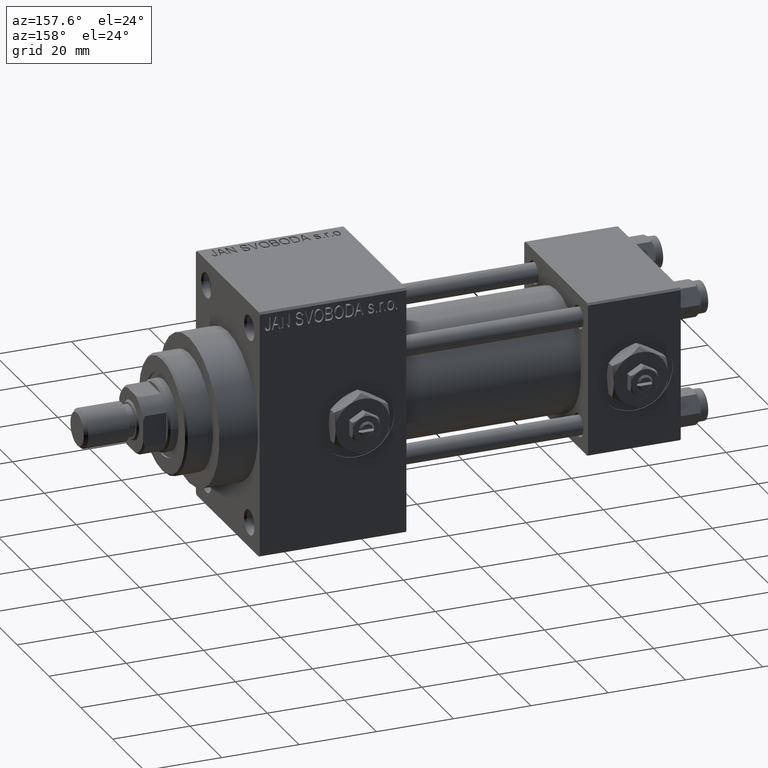
[diagram: clean part render]
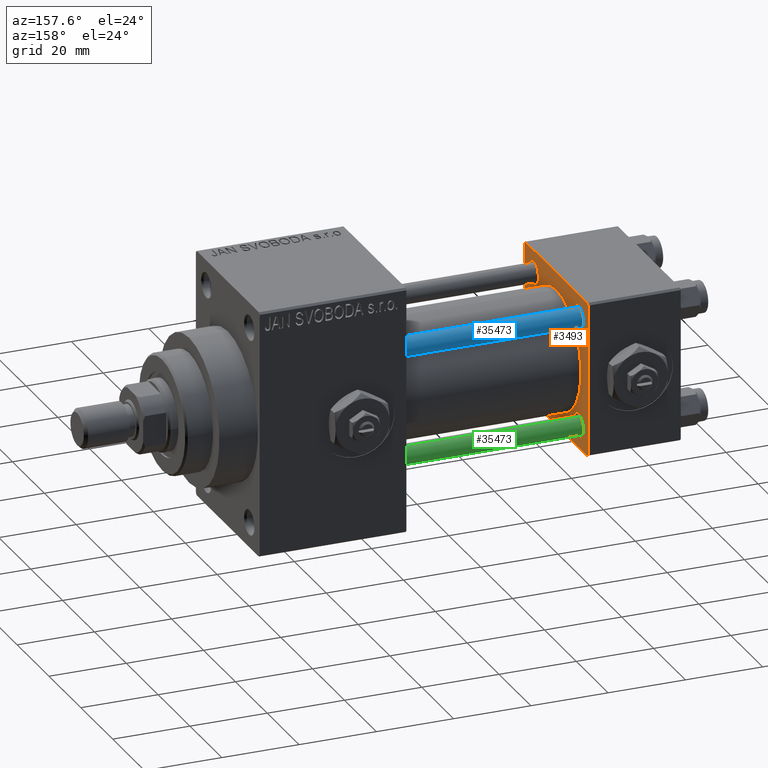
[diagram: same view with three faces highlighted in distinct colors, each labeled with its STEP entity id]
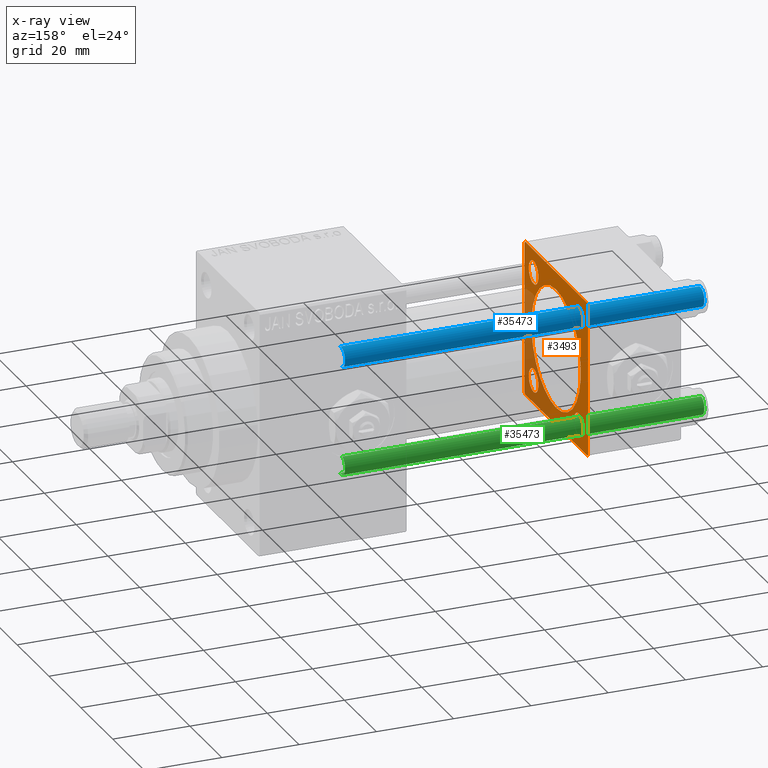
[diagram: x-ray of the same camera — body ghosted, the three highlighted faces saturated]
A machine part, auxiliary view with three faces highlighted in distinct colors.
The next image is the same camera in x-ray (body ghosted, the three faces saturated) — at least one of them is partly hidden behind the body in this view.
Their STEP definitions:

[orange] entity #3493 — the highlighted planar face has unit normal (-1, 0, 0).
#194 = LINE ( 'NONE', #11214, #33033 ) ;
#1168 = CARTESIAN_POINT ( 'NONE',  ( 24.00000000000000000, -14.14999999999999503, -11.15000000000002878 ) ) ;
#2058 = DIRECTION ( 'NONE',  ( -1.000000000000000000, -0.000000000000000000, -0.000000000000000000 ) ) ;
#2675 = CIRCLE ( 'NONE', #5827, 15.50000000000000000 ) ;
#2698 = CARTESIAN_POINT ( 'NONE',  ( 24.00000000000000000, 14.14999999999999858, 17.14999999999994884 ) ) ;
#2709 = LINE ( 'NONE', #18954, #3199 ) ;
#3138 = ORIENTED_EDGE ( 'NONE', *, *, #45624, .T. ) ;
#3199 = VECTOR ( 'NONE', #36975, 1000.000000000000114 ) ;
#3270 = FACE_BOUND ( 'NONE', #29572, .T. ) ;
#3493 = ADVANCED_FACE ( 'NONE', ( #26036, #34767, #3270, #18539, #14782, #30040 ), #26526, .F. ) ;
#4103 = EDGE_CURVE ( 'NONE', #37865, #14377, #33474, .T. ) ;
#4356 = VECTOR ( 'NONE', #19568, 1000.000000000000000 ) ;
#5347 = EDGE_CURVE ( 'NONE', #40837, #47763, #47851, .T. ) ;
#5355 = EDGE_LOOP ( 'NONE', ( #41540, #14274 ) ) ;
#5589 = VECTOR ( 'NONE', #34095, 1000.000000000000000 ) ;
#5827 = AXIS2_PLACEMENT_3D ( 'NONE', #19478, #49467, #23217 ) ;
#6228 = ORIENTED_EDGE ( 'NONE', *, *, #7912, .F. ) ;
#6404 = EDGE_CURVE ( 'NONE', #12147, #44591, #13555, .T. ) ;
#6773 = EDGE_LOOP ( 'NONE', ( #26149, #40244 ) ) ;
#6933 = LINE ( 'NONE', #7672, #20776 ) ;
#6952 = CARTESIAN_POINT ( 'NONE',  ( 24.00000000000000000, 14.14999999999999858, 11.15000000000005365 ) ) ;
#7018 = EDGE_CURVE ( 'NONE', #36329, #10434, #6933, .T. ) ;
#7356 = VERTEX_POINT ( 'NONE', #28833 ) ;
#7449 = CARTESIAN_POINT ( 'NONE',  ( 24.00000000000000000, -20.00000000000000000, -19.49999999999999645 ) ) ;
#7489 = CIRCLE ( 'NONE', #48218, 2.999999999999945377 ) ;
#7557 = CARTESIAN_POINT ( 'NONE',  ( 24.00000000000000000, -14.14999999999999503, 11.15000000000002878 ) ) ;
#7573 = CARTESIAN_POINT ( 'NONE',  ( 24.00000000000000000, -20.00000000000000355, 19.99999999999998934 ) ) ;
#7672 = CARTESIAN_POINT ( 'NONE',  ( 24.00000000000000000, 19.50000000000000000, 20.00000000000000000 ) ) ;
#7912 = EDGE_CURVE ( 'NONE', #27435, #14240, #8469, .T. ) ;
#8072 = EDGE_LOOP ( 'NONE', ( #23121, #39731 ) ) ;
#8277 = CARTESIAN_POINT ( 'NONE',  ( 24.00000000000000000, 20.00000000000000000, 20.00000000000000000 ) ) ;
#8469 = LINE ( 'NONE', #26514, #44771 ) ;
#8503 = EDGE_LOOP ( 'NONE', ( #6228, #38255, #18301, #45475, #46469, #41881, #8853, #3138 ) ) ;
#8853 = ORIENTED_EDGE ( 'NONE', *, *, #33334, .T. ) ;
#10434 = VERTEX_POINT ( 'NONE', #38775 ) ;
#10852 = DIRECTION ( 'NONE',  ( -0.000000000000000000, 0.7071067811865524577, 0.7071067811865426878 ) ) ;
#11112 = DIRECTION ( 'NONE',  ( 0.000000000000000000, 0.000000000000000000, 1.000000000000000000 ) ) ;
#11152 = CARTESIAN_POINT ( 'NONE',  ( 24.00000000000000000, 20.00000000000000000, 19.49999999999999289 ) ) ;
#11214 = CARTESIAN_POINT ( 'NONE',  ( 24.00000000000000000, 20.00000000000000000, 20.00000000000000000 ) ) ;
#11800 = CARTESIAN_POINT ( 'NONE',  ( 24.00000000000000000, -7.038826752868131828E-16, -15.50000000000000000 ) ) ;
#11896 = CARTESIAN_POINT ( 'NONE',  ( 24.00000000000000000, 20.00000000000000000, -19.50000000000002132 ) ) ;
#12147 = VERTEX_POINT ( 'NONE', #49171 ) ;
#12294 = LINE ( 'NONE', #47281, #4356 ) ;
#12897 = CARTESIAN_POINT ( 'NONE',  ( 24.00000000000000000, -14.14999999999999503, 17.14999999999998082 ) ) ;
#13090 = CARTESIAN_POINT ( 'NONE',  ( 24.00000000000000000, -2.602085213965210642E-15, 15.50000000000000000 ) ) ;
#13141 = ORIENTED_EDGE ( 'NONE', *, *, #23195, .T. ) ;
#13555 = CIRCLE ( 'NONE', #25527, 2.999999999999945377 ) ;
#14240 = VERTEX_POINT ( 'NONE', #36591 ) ;
#14274 = ORIENTED_EDGE ( 'NONE', *, *, #49181, .F. ) ;
#14377 = VERTEX_POINT ( 'NONE', #7557 ) ;
#14782 = FACE_BOUND ( 'NONE', #5355, .T. ) ;
#14824 = DIRECTION ( 'NONE',  ( 0.000000000000000000, 0.000000000000000000, 1.000000000000000000 ) ) ;
#15519 = DIRECTION ( 'NONE',  ( -1.000000000000000000, 0.000000000000000000, -0.000000000000000000 ) ) ;
#15733 = CIRCLE ( 'NONE', #22141, 15.50000000000000000 ) ;
#15789 = LINE ( 'NONE', #8277, #39945 ) ;
#16057 = CARTESIAN_POINT ( 'NONE',  ( 24.00000000000000000, -19.49999999999999289, 19.99999999999998934 ) ) ;
#17065 = DIRECTION ( 'NONE',  ( 0.000000000000000000, 0.000000000000000000, 1.000000000000000000 ) ) ;
#17284 = EDGE_CURVE ( 'NONE', #36329, #42843, #194, .T. ) ;
#17489 = CARTESIAN_POINT ( 'NONE',  ( 24.00000000000000000, -14.14999999999999503, -14.15000000000000391 ) ) ;
#17803 = DIRECTION ( 'NONE',  ( -1.000000000000000000, -0.000000000000000000, -0.000000000000000000 ) ) ;
#18301 = ORIENTED_EDGE ( 'NONE', *, *, #17284, .F. ) ;
#18461 = DIRECTION ( 'NONE',  ( 0.000000000000000000, -0.7071067811865425767, 0.7071067811865525687 ) ) ;
#18499 = DIRECTION ( 'NONE',  ( 0.000000000000000000, 0.000000000000000000, -1.000000000000000000 ) ) ;
#18539 = FACE_BOUND ( 'NONE', #43285, .T. ) ;
#18608 = EDGE_CURVE ( 'NONE', #32709, #46215, #7489, .T. ) ;
#18954 = CARTESIAN_POINT ( 'NONE',  ( 24.00000000000000000, -20.00000000000000355, 19.49999999999998224 ) ) ;
#19026 = AXIS2_PLACEMENT_3D ( 'NONE', #32237, #30227, #33735 ) ;
#19138 = DIRECTION ( 'NONE',  ( -1.000000000000000000, -0.000000000000000000, -0.000000000000000000 ) ) ;
#19478 = CARTESIAN_POINT ( 'NONE',  ( 24.00000000000000000, -2.602085213965210642E-15, 0.000000000000000000 ) ) ;
#19568 = DIRECTION ( 'NONE',  ( 0.000000000000000000, 0.7071067811865401342, -0.7071067811865549002 ) ) ;
#19917 = ORIENTED_EDGE ( 'NONE', *, *, #18608, .T. ) ;
#20669 = AXIS2_PLACEMENT_3D ( 'NONE', #48784, #17803, #44543 ) ;
#20776 = VECTOR ( 'NONE', #18461, 999.9999999999998863 ) ;
#20922 = EDGE_CURVE ( 'NONE', #22864, #23866, #15733, .T. ) ;
#21072 = CARTESIAN_POINT ( 'NONE',  ( 24.00000000000000000, 14.14999999999999858, 14.15000000000000036 ) ) ;
#22003 = DIRECTION ( 'NONE',  ( -1.000000000000000000, -0.000000000000000000, -0.000000000000000000 ) ) ;
#22141 = AXIS2_PLACEMENT_3D ( 'NONE', #49063, #34567, #14824 ) ;
#22864 = VERTEX_POINT ( 'NONE', #13090 ) ;
#23034 = AXIS2_PLACEMENT_3D ( 'NONE', #34035, #15519, #30773 ) ;
#23121 = ORIENTED_EDGE ( 'NONE', *, *, #32308, .T. ) ;
#23195 = EDGE_CURVE ( 'NONE', #14377, #37865, #32580, .T. ) ;
#23217 = DIRECTION ( 'NONE',  ( 0.000000000000000000, 0.000000000000000000, 1.000000000000000000 ) ) ;
#23866 = VERTEX_POINT ( 'NONE', #11800 ) ;
#24918 = LINE ( 'NONE', #41107, #47437 ) ;
#25171 = CARTESIAN_POINT ( 'NONE',  ( 24.00000000000000000, 14.14999999999999858, 14.15000000000000036 ) ) ;
#25211 = VERTEX_POINT ( 'NONE', #7449 ) ;
#25527 = AXIS2_PLACEMENT_3D ( 'NONE', #33646, #40878, #11112 ) ;
#25578 = AXIS2_PLACEMENT_3D ( 'NONE', #27605, #19138, #42848 ) ;
#26036 = FACE_BOUND ( 'NONE', #6773, .T. ) ;
#26149 = ORIENTED_EDGE ( 'NONE', *, *, #41705, .T. ) ;
#26305 = ORIENTED_EDGE ( 'NONE', *, *, #27852, .T. ) ;
#26423 = CARTESIAN_POINT ( 'NONE',  ( 24.00000000000000000, 19.50000000000000711, -20.00000000000000711 ) ) ;
#26514 = CARTESIAN_POINT ( 'NONE',  ( 24.00000000000000000, 20.00000000000000000, -20.00000000000000711 ) ) ;
#26526 = PLANE ( 'NONE',  #23034 ) ;
#27316 = LINE ( 'NONE', #7573, #5589 ) ;
#27435 = VERTEX_POINT ( 'NONE', #26423 ) ;
#27605 = CARTESIAN_POINT ( 'NONE',  ( 24.00000000000000000, 14.14999999999999858, -14.15000000000000036 ) ) ;
#27852 = EDGE_CURVE ( 'NONE', #46215, #32709, #39909, .T. ) ;
#27953 = CIRCLE ( 'NONE', #25578, 2.999999999999945377 ) ;
#28601 = EDGE_CURVE ( 'NONE', #10434, #33351, #15789, .T. ) ;
#28833 = CARTESIAN_POINT ( 'NONE',  ( 24.00000000000000000, -20.00000000000000355, 19.49999999999998224 ) ) ;
#29074 = DIRECTION ( 'NONE',  ( 0.000000000000000000, 0.000000000000000000, 1.000000000000000000 ) ) ;
#29176 = DIRECTION ( 'NONE',  ( -1.000000000000000000, -0.000000000000000000, -0.000000000000000000 ) ) ;
#29572 = EDGE_LOOP ( 'NONE', ( #13141, #34450 ) ) ;
#30040 = FACE_OUTER_BOUND ( 'NONE', #8503, .T. ) ;
#30227 = DIRECTION ( 'NONE',  ( -1.000000000000000000, -0.000000000000000000, -0.000000000000000000 ) ) ;
#30324 = AXIS2_PLACEMENT_3D ( 'NONE', #39801, #36067, #17065 ) ;
#30773 = DIRECTION ( 'NONE',  ( -0.000000000000000000, 0.000000000000000000, 1.000000000000000000 ) ) ;
#31728 = EDGE_CURVE ( 'NONE', #33351, #7356, #2709, .T. ) ;
#32237 = CARTESIAN_POINT ( 'NONE',  ( 24.00000000000000000, -14.14999999999999503, 14.15000000000000391 ) ) ;
#32308 = EDGE_CURVE ( 'NONE', #44591, #12147, #27953, .T. ) ;
#32580 = CIRCLE ( 'NONE', #19026, 2.999999999999976463 ) ;
#32709 = VERTEX_POINT ( 'NONE', #6952 ) ;
#32781 = CARTESIAN_POINT ( 'NONE',  ( 24.00000000000000000, -14.14999999999999503, -17.14999999999998082 ) ) ;
#33033 = VECTOR ( 'NONE', #18499, 1000.000000000000000 ) ;
#33334 = EDGE_CURVE ( 'NONE', #7356, #25211, #27316, .T. ) ;
#33351 = VERTEX_POINT ( 'NONE', #16057 ) ;
#33474 = CIRCLE ( 'NONE', #20669, 2.999999999999976463 ) ;
#33498 = DIRECTION ( 'NONE',  ( 0.000000000000000000, 0.000000000000000000, 1.000000000000000000 ) ) ;
#33646 = CARTESIAN_POINT ( 'NONE',  ( 24.00000000000000000, 14.14999999999999858, -14.15000000000000036 ) ) ;
#33735 = DIRECTION ( 'NONE',  ( 0.000000000000000000, 0.000000000000000000, 1.000000000000000000 ) ) ;
#34035 = CARTESIAN_POINT ( 'NONE',  ( 24.00000000000000000, 0.000000000000000000, 0.000000000000000000 ) ) ;
#34095 = DIRECTION ( 'NONE',  ( 0.000000000000000000, 8.673617379884036705E-17, -1.000000000000000000 ) ) ;
#34450 = ORIENTED_EDGE ( 'NONE', *, *, #4103, .T. ) ;
#34567 = DIRECTION ( 'NONE',  ( 1.000000000000000000, 0.000000000000000000, 0.000000000000000000 ) ) ;
#34717 = CIRCLE ( 'NONE', #44275, 2.999999999999976463 ) ;
#34767 = FACE_BOUND ( 'NONE', #8072, .T. ) ;
#36067 = DIRECTION ( 'NONE',  ( -1.000000000000000000, -0.000000000000000000, -0.000000000000000000 ) ) ;
#36329 = VERTEX_POINT ( 'NONE', #11152 ) ;
#36591 = CARTESIAN_POINT ( 'NONE',  ( 24.00000000000000000, -19.50000000000000711, -20.00000000000000000 ) ) ;
#36975 = DIRECTION ( 'NONE',  ( -0.000000000000000000, -0.7071067811865500152, -0.7071067811865451302 ) ) ;
#37865 = VERTEX_POINT ( 'NONE', #12897 ) ;
#38255 = ORIENTED_EDGE ( 'NONE', *, *, #41020, .T. ) ;
#38775 = CARTESIAN_POINT ( 'NONE',  ( 24.00000000000000000, 19.50000000000000000, 20.00000000000000000 ) ) ;
#39731 = ORIENTED_EDGE ( 'NONE', *, *, #6404, .T. ) ;
#39801 = CARTESIAN_POINT ( 'NONE',  ( 24.00000000000000000, -14.14999999999999503, -14.15000000000000391 ) ) ;
#39909 = CIRCLE ( 'NONE', #47081, 2.999999999999945377 ) ;
#39945 = VECTOR ( 'NONE', #42283, 1000.000000000000000 ) ;
#40244 = ORIENTED_EDGE ( 'NONE', *, *, #5347, .T. ) ;
#40662 = DIRECTION ( 'NONE',  ( 0.000000000000000000, 0.000000000000000000, 1.000000000000000000 ) ) ;
#40837 = VERTEX_POINT ( 'NONE', #1168 ) ;
#40878 = DIRECTION ( 'NONE',  ( -1.000000000000000000, -0.000000000000000000, -0.000000000000000000 ) ) ;
#41020 = EDGE_CURVE ( 'NONE', #27435, #42843, #24918, .T. ) ;
#41107 = CARTESIAN_POINT ( 'NONE',  ( 24.00000000000000000, 20.00000000000000000, -19.50000000000002132 ) ) ;
#41540 = ORIENTED_EDGE ( 'NONE', *, *, #20922, .F. ) ;
#41705 = EDGE_CURVE ( 'NONE', #47763, #40837, #34717, .T. ) ;
#41881 = ORIENTED_EDGE ( 'NONE', *, *, #31728, .T. ) ;
#42235 = DIRECTION ( 'NONE',  ( 0.000000000000000000, -1.000000000000000000, 1.734723475976807094E-16 ) ) ;
#42283 = DIRECTION ( 'NONE',  ( 0.000000000000000000, -1.000000000000000000, -2.602085213965210149E-16 ) ) ;
#42843 = VERTEX_POINT ( 'NONE', #11896 ) ;
#42848 = DIRECTION ( 'NONE',  ( 0.000000000000000000, 0.000000000000000000, 1.000000000000000000 ) ) ;
#43285 = EDGE_LOOP ( 'NONE', ( #19917, #26305 ) ) ;
#44275 = AXIS2_PLACEMENT_3D ( 'NONE', #17489, #22003, #33498 ) ;
#44543 = DIRECTION ( 'NONE',  ( 0.000000000000000000, 0.000000000000000000, 1.000000000000000000 ) ) ;
#44591 = VERTEX_POINT ( 'NONE', #44835 ) ;
#44771 = VECTOR ( 'NONE', #42235, 1000.000000000000000 ) ;
#44835 = CARTESIAN_POINT ( 'NONE',  ( 24.00000000000000000, 14.14999999999999858, -17.14999999999994884 ) ) ;
#45475 = ORIENTED_EDGE ( 'NONE', *, *, #7018, .T. ) ;
#45624 = EDGE_CURVE ( 'NONE', #25211, #14240, #12294, .T. ) ;
#46215 = VERTEX_POINT ( 'NONE', #2698 ) ;
#46469 = ORIENTED_EDGE ( 'NONE', *, *, #28601, .T. ) ;
#47081 = AXIS2_PLACEMENT_3D ( 'NONE', #21072, #2058, #29074 ) ;
#47281 = CARTESIAN_POINT ( 'NONE',  ( 24.00000000000000000, -19.50000000000000711, -20.00000000000000000 ) ) ;
#47437 = VECTOR ( 'NONE', #10852, 1000.000000000000000 ) ;
#47763 = VERTEX_POINT ( 'NONE', #32781 ) ;
#47851 = CIRCLE ( 'NONE', #30324, 2.999999999999976463 ) ;
#48218 = AXIS2_PLACEMENT_3D ( 'NONE', #25171, #29176, #40662 ) ;
#48784 = CARTESIAN_POINT ( 'NONE',  ( 24.00000000000000000, -14.14999999999999503, 14.15000000000000391 ) ) ;
#49063 = CARTESIAN_POINT ( 'NONE',  ( 24.00000000000000000, -2.602085213965210642E-15, 0.000000000000000000 ) ) ;
#49171 = CARTESIAN_POINT ( 'NONE',  ( 24.00000000000000000, 14.14999999999999858, -11.15000000000005365 ) ) ;
#49181 = EDGE_CURVE ( 'NONE', #23866, #22864, #2675, .T. ) ;
#49467 = DIRECTION ( 'NONE',  ( 1.000000000000000000, 0.000000000000000000, 0.000000000000000000 ) ) ;

[blue] entity #35473 — the highlighted cylindrical surface (edge-blend (fillet) strip) has radius 2.5 mm, axis along (-1, -0, 0).
#141 = VERTEX_POINT ( 'NONE', #17518 ) ;
#617 = CYLINDRICAL_SURFACE ( 'NONE', #12914, 2.500000000000000000 ) ;
#654 = ORIENTED_EDGE ( 'NONE', *, *, #15210, .T. ) ;
#1101 = EDGE_CURVE ( 'NONE', #40029, #48490, #5914, .T. ) ;
#1356 = FACE_OUTER_BOUND ( 'NONE', #9969, .T. ) ;
#2603 = AXIS2_PLACEMENT_3D ( 'NONE', #40041, #25798, #25047 ) ;
#5330 = CARTESIAN_POINT ( 'NONE',  ( 2.500000000000000000, 3.061616997868383141E-16, 0.5000000000000004441 ) ) ;
#5471 = DIRECTION ( 'NONE',  ( -0.000000000000000000, -0.000000000000000000, -1.000000000000000000 ) ) ;
#5914 = LINE ( 'NONE', #36191, #36561 ) ;
#6599 = CIRCLE ( 'NONE', #2603, 2.500000000000000000 ) ;
#9623 = EDGE_CURVE ( 'NONE', #141, #37247, #38768, .T. ) ;
#9969 = EDGE_LOOP ( 'NONE', ( #654, #41514, #14313, #20814 ) ) ;
#11991 = CARTESIAN_POINT ( 'NONE',  ( 0.000000000000000000, 0.000000000000000000, 93.50000000000001421 ) ) ;
#12238 = DIRECTION ( 'NONE',  ( 0.000000000000000000, 0.000000000000000000, -1.000000000000000000 ) ) ;
#12914 = AXIS2_PLACEMENT_3D ( 'NONE', #16613, #38873, #47108 ) ;
#14313 = ORIENTED_EDGE ( 'NONE', *, *, #15860, .T. ) ;
#15210 = EDGE_CURVE ( 'NONE', #141, #40029, #36121, .T. ) ;
#15860 = EDGE_CURVE ( 'NONE', #48490, #37247, #6599, .T. ) ;
#16613 = CARTESIAN_POINT ( 'NONE',  ( 0.000000000000000000, 0.000000000000000000, 94.00000000000000000 ) ) ;
#17518 = CARTESIAN_POINT ( 'NONE',  ( -2.500000000000000000, 0.000000000000000000, 93.50000000000001421 ) ) ;
#18009 = CARTESIAN_POINT ( 'NONE',  ( -2.500000000000000000, 0.000000000000000000, 0.5000000000000004441 ) ) ;
#19513 = DIRECTION ( 'NONE',  ( 1.000000000000000000, 0.000000000000000000, 0.000000000000000000 ) ) ;
#20747 = CARTESIAN_POINT ( 'NONE',  ( -2.500000000000000000, 0.000000000000000000, 94.00000000000000000 ) ) ;
#20814 = ORIENTED_EDGE ( 'NONE', *, *, #9623, .F. ) ;
#25047 = DIRECTION ( 'NONE',  ( 1.000000000000000000, 0.000000000000000000, 0.000000000000000000 ) ) ;
#25798 = DIRECTION ( 'NONE',  ( -0.000000000000000000, -0.000000000000000000, 1.000000000000000000 ) ) ;
#35231 = VECTOR ( 'NONE', #5471, 1000.000000000000000 ) ;
#35473 = ADVANCED_FACE ( 'NONE', ( #1356 ), #617, .T. ) ;
#36121 = CIRCLE ( 'NONE', #37738, 2.500000000000000000 ) ;
#36191 = CARTESIAN_POINT ( 'NONE',  ( 2.500000000000000000, 3.061616997868383141E-16, 94.00000000000000000 ) ) ;
#36561 = VECTOR ( 'NONE', #43924, 1000.000000000000000 ) ;
#36939 = CARTESIAN_POINT ( 'NONE',  ( 2.500000000000000000, 3.061616997868383141E-16, 93.50000000000001421 ) ) ;
#37247 = VERTEX_POINT ( 'NONE', #18009 ) ;
#37738 = AXIS2_PLACEMENT_3D ( 'NONE', #11991, #12238, #19513 ) ;
#38768 = LINE ( 'NONE', #20747, #35231 ) ;
#38873 = DIRECTION ( 'NONE',  ( -0.000000000000000000, -0.000000000000000000, -1.000000000000000000 ) ) ;
#40029 = VERTEX_POINT ( 'NONE', #36939 ) ;
#40041 = CARTESIAN_POINT ( 'NONE',  ( 0.000000000000000000, 0.000000000000000000, 0.5000000000000004441 ) ) ;
#41514 = ORIENTED_EDGE ( 'NONE', *, *, #1101, .T. ) ;
#43924 = DIRECTION ( 'NONE',  ( -0.000000000000000000, -0.000000000000000000, -1.000000000000000000 ) ) ;
#47108 = DIRECTION ( 'NONE',  ( -1.000000000000000000, 0.000000000000000000, 0.000000000000000000 ) ) ;
#48490 = VERTEX_POINT ( 'NONE', #5330 ) ;

[green] entity #35473 — the highlighted cylindrical surface (edge-blend (fillet) strip) has radius 2.5 mm, axis along (1, -0, 0).
#141 = VERTEX_POINT ( 'NONE', #17518 ) ;
#617 = CYLINDRICAL_SURFACE ( 'NONE', #12914, 2.500000000000000000 ) ;
#654 = ORIENTED_EDGE ( 'NONE', *, *, #15210, .T. ) ;
#1101 = EDGE_CURVE ( 'NONE', #40029, #48490, #5914, .T. ) ;
#1356 = FACE_OUTER_BOUND ( 'NONE', #9969, .T. ) ;
#2603 = AXIS2_PLACEMENT_3D ( 'NONE', #40041, #25798, #25047 ) ;
#5330 = CARTESIAN_POINT ( 'NONE',  ( 2.500000000000000000, 3.061616997868383141E-16, 0.5000000000000004441 ) ) ;
#5471 = DIRECTION ( 'NONE',  ( -0.000000000000000000, -0.000000000000000000, -1.000000000000000000 ) ) ;
#5914 = LINE ( 'NONE', #36191, #36561 ) ;
#6599 = CIRCLE ( 'NONE', #2603, 2.500000000000000000 ) ;
#9623 = EDGE_CURVE ( 'NONE', #141, #37247, #38768, .T. ) ;
#9969 = EDGE_LOOP ( 'NONE', ( #654, #41514, #14313, #20814 ) ) ;
#11991 = CARTESIAN_POINT ( 'NONE',  ( 0.000000000000000000, 0.000000000000000000, 93.50000000000001421 ) ) ;
#12238 = DIRECTION ( 'NONE',  ( 0.000000000000000000, 0.000000000000000000, -1.000000000000000000 ) ) ;
#12914 = AXIS2_PLACEMENT_3D ( 'NONE', #16613, #38873, #47108 ) ;
#14313 = ORIENTED_EDGE ( 'NONE', *, *, #15860, .T. ) ;
#15210 = EDGE_CURVE ( 'NONE', #141, #40029, #36121, .T. ) ;
#15860 = EDGE_CURVE ( 'NONE', #48490, #37247, #6599, .T. ) ;
#16613 = CARTESIAN_POINT ( 'NONE',  ( 0.000000000000000000, 0.000000000000000000, 94.00000000000000000 ) ) ;
#17518 = CARTESIAN_POINT ( 'NONE',  ( -2.500000000000000000, 0.000000000000000000, 93.50000000000001421 ) ) ;
#18009 = CARTESIAN_POINT ( 'NONE',  ( -2.500000000000000000, 0.000000000000000000, 0.5000000000000004441 ) ) ;
#19513 = DIRECTION ( 'NONE',  ( 1.000000000000000000, 0.000000000000000000, 0.000000000000000000 ) ) ;
#20747 = CARTESIAN_POINT ( 'NONE',  ( -2.500000000000000000, 0.000000000000000000, 94.00000000000000000 ) ) ;
#20814 = ORIENTED_EDGE ( 'NONE', *, *, #9623, .F. ) ;
#25047 = DIRECTION ( 'NONE',  ( 1.000000000000000000, 0.000000000000000000, 0.000000000000000000 ) ) ;
#25798 = DIRECTION ( 'NONE',  ( -0.000000000000000000, -0.000000000000000000, 1.000000000000000000 ) ) ;
#35231 = VECTOR ( 'NONE', #5471, 1000.000000000000000 ) ;
#35473 = ADVANCED_FACE ( 'NONE', ( #1356 ), #617, .T. ) ;
#36121 = CIRCLE ( 'NONE', #37738, 2.500000000000000000 ) ;
#36191 = CARTESIAN_POINT ( 'NONE',  ( 2.500000000000000000, 3.061616997868383141E-16, 94.00000000000000000 ) ) ;
#36561 = VECTOR ( 'NONE', #43924, 1000.000000000000000 ) ;
#36939 = CARTESIAN_POINT ( 'NONE',  ( 2.500000000000000000, 3.061616997868383141E-16, 93.50000000000001421 ) ) ;
#37247 = VERTEX_POINT ( 'NONE', #18009 ) ;
#37738 = AXIS2_PLACEMENT_3D ( 'NONE', #11991, #12238, #19513 ) ;
#38768 = LINE ( 'NONE', #20747, #35231 ) ;
#38873 = DIRECTION ( 'NONE',  ( -0.000000000000000000, -0.000000000000000000, -1.000000000000000000 ) ) ;
#40029 = VERTEX_POINT ( 'NONE', #36939 ) ;
#40041 = CARTESIAN_POINT ( 'NONE',  ( 0.000000000000000000, 0.000000000000000000, 0.5000000000000004441 ) ) ;
#41514 = ORIENTED_EDGE ( 'NONE', *, *, #1101, .T. ) ;
#43924 = DIRECTION ( 'NONE',  ( -0.000000000000000000, -0.000000000000000000, -1.000000000000000000 ) ) ;
#47108 = DIRECTION ( 'NONE',  ( -1.000000000000000000, 0.000000000000000000, 0.000000000000000000 ) ) ;
#48490 = VERTEX_POINT ( 'NONE', #5330 ) ;